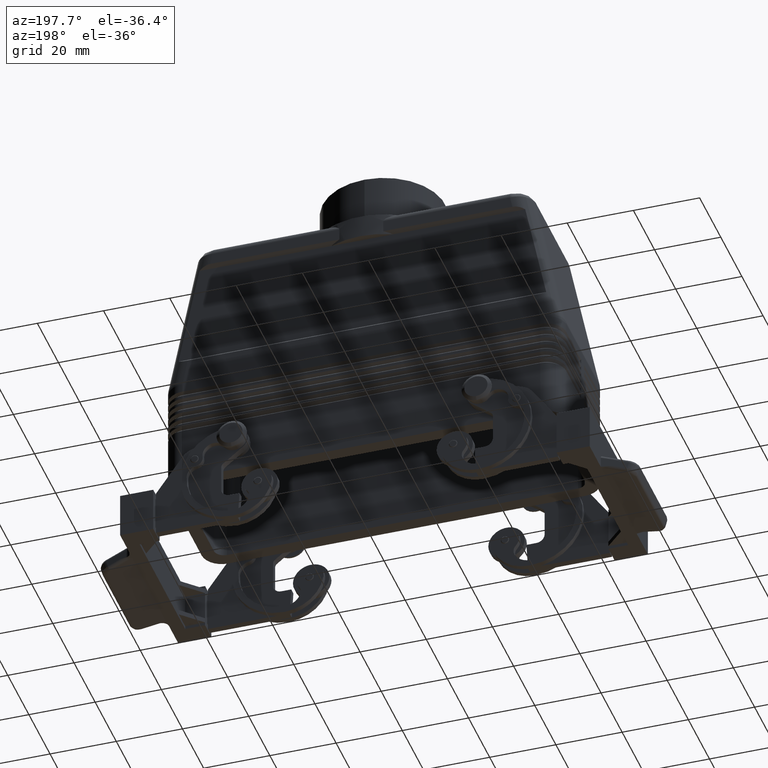
[diagram: clean part render]
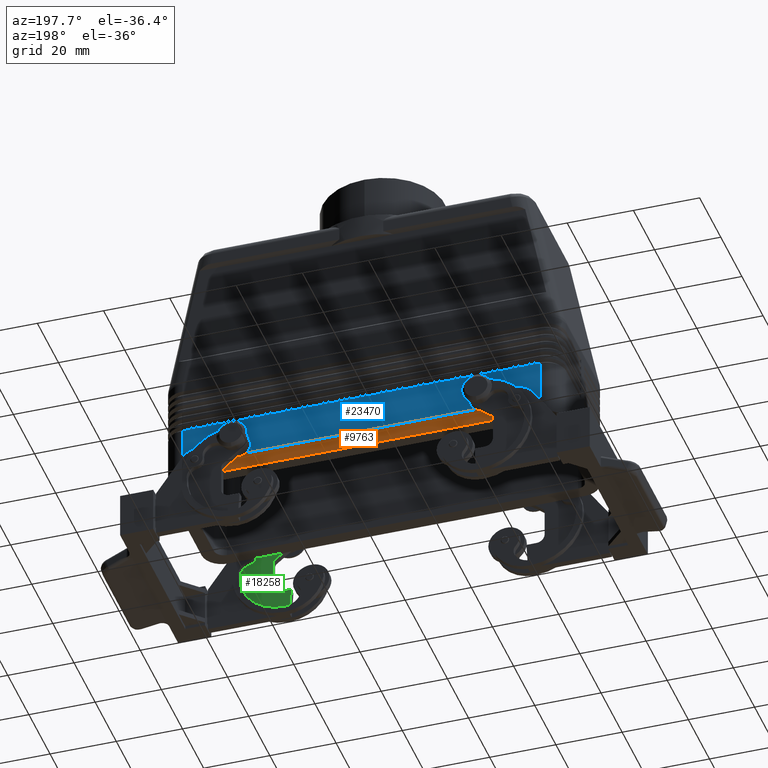
[diagram: same view with three faces highlighted in distinct colors, each labeled with its STEP entity id]
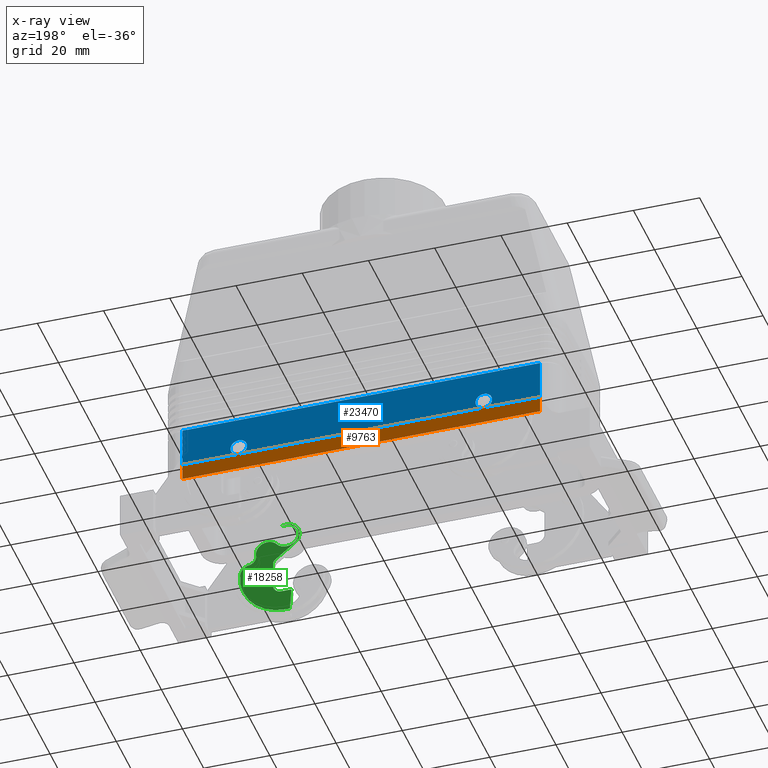
[diagram: x-ray of the same camera — body ghosted, the three highlighted faces saturated]
A machine part, auxiliary view with three faces highlighted in distinct colors.
The next image is the same camera in x-ray (body ghosted, the three faces saturated) — at least one of them is partly hidden behind the body in this view.
Their STEP definitions:

[orange] entity #9763 — the highlighted planar face has unit normal (0, 1, 0).
#5340=CARTESIAN_POINT('',(37.0,21.501000000000012,5.0));
#5341=VERTEX_POINT('',#5340);
#5464=CARTESIAN_POINT('',(-37.0,21.501000000000012,5.0));
#5465=VERTEX_POINT('',#5464);
#9177=CARTESIAN_POINT('',(54.000999999999983,21.501000000000012,5.0));
#9178=VERTEX_POINT('',#9177);
#9186=CARTESIAN_POINT('',(37.0,21.501000000000012,5.0));
#9187=DIRECTION('',(1.0,0.0,0.0));
#9188=VECTOR('',#9187,17.000999999999983);
#9189=LINE('',#9186,#9188);
#9190=EDGE_CURVE('',#5341,#9178,#9189,.T.);
#9311=CARTESIAN_POINT('',(-54.000999999999983,21.501000000000012,5.0));
#9312=VERTEX_POINT('',#9311);
#9313=CARTESIAN_POINT('',(-54.000999999999983,21.501000000000012,5.0));
#9314=DIRECTION('',(1.0,0.0,0.0));
#9315=VECTOR('',#9314,17.000999999999983);
#9316=LINE('',#9313,#9315);
#9317=EDGE_CURVE('',#9312,#5465,#9316,.T.);
#9377=CARTESIAN_POINT('',(-37.0,21.501000000000012,5.0));
#9378=DIRECTION('',(1.0,0.0,0.0));
#9379=VECTOR('',#9378,74.0);
#9380=LINE('',#9377,#9379);
#9381=EDGE_CURVE('',#5465,#5341,#9380,.T.);
#9719=CARTESIAN_POINT('',(-54.000999999999983,21.501000000000012,0.0));
#9720=VERTEX_POINT('',#9719);
#9721=CARTESIAN_POINT('',(-54.000999999999983,21.501000000000012,0.0));
#9722=DIRECTION('',(0.0,0.0,1.0));
#9723=VECTOR('',#9722,5.0);
#9724=LINE('',#9721,#9723);
#9725=EDGE_CURVE('',#9720,#9312,#9724,.T.);
#9738=CARTESIAN_POINT('',(-54.000999999999983,21.501000000000012,0.0));
#9739=DIRECTION('',(0.0,1.0,0.0));
#9740=DIRECTION('',(0.0,0.0,1.0));
#9741=AXIS2_PLACEMENT_3D('',#9738,#9739,#9740);
#9742=PLANE('',#9741);
#9743=ORIENTED_EDGE('',*,*,#9317,.T.);
#9744=ORIENTED_EDGE('',*,*,#9381,.T.);
#9745=ORIENTED_EDGE('',*,*,#9190,.T.);
#9746=CARTESIAN_POINT('',(54.000999999999983,21.501000000000012,0.0));
#9747=VERTEX_POINT('',#9746);
#9748=CARTESIAN_POINT('',(54.000999999999983,21.501000000000012,0.0));
#9749=DIRECTION('',(0.0,0.0,1.0));
#9750=VECTOR('',#9749,5.0);
#9751=LINE('',#9748,#9750);
#9752=EDGE_CURVE('',#9747,#9178,#9751,.T.);
#9753=ORIENTED_EDGE('',*,*,#9752,.F.);
#9754=CARTESIAN_POINT('',(54.000999999999983,21.501000000000012,0.0));
#9755=DIRECTION('',(-1.0,0.0,0.0));
#9756=VECTOR('',#9755,108.001999999999970);
#9757=LINE('',#9754,#9756);
#9758=EDGE_CURVE('',#9747,#9720,#9757,.T.);
#9759=ORIENTED_EDGE('',*,*,#9758,.T.);
#9760=ORIENTED_EDGE('',*,*,#9725,.T.);
#9761=EDGE_LOOP('',(#9743,#9744,#9745,#9753,#9759,#9760));
#9762=FACE_OUTER_BOUND('',#9761,.T.);
#9763=ADVANCED_FACE('',(#9762),#9742,.T.);

[blue] entity #23470 — the highlighted planar face has unit normal (0, 1, 0).
#3510=CARTESIAN_POINT('',(54.0,21.500000000000000,5.0));
#3511=VERTEX_POINT('',#3510);
#3519=CARTESIAN_POINT('',(54.0,21.500000000000000,17.250000000000011));
#3520=VERTEX_POINT('',#3519);
#3521=CARTESIAN_POINT('',(54.0,21.500000000000000,5.0));
#3522=DIRECTION('',(0.0,0.0,1.0));
#3523=VECTOR('',#3522,12.250000000000011);
#3524=LINE('',#3521,#3523);
#3525=EDGE_CURVE('',#3511,#3520,#3524,.T.);
#3552=CARTESIAN_POINT('',(-54.0,21.500000000000000,17.250000000000011));
#3553=VERTEX_POINT('',#3552);
#3561=CARTESIAN_POINT('',(-54.0,21.500000000000000,5.0));
#3562=VERTEX_POINT('',#3561);
#3563=CARTESIAN_POINT('',(-54.0,21.500000000000000,17.250000000000011));
#3564=DIRECTION('',(0.0,0.0,-1.0));
#3565=VECTOR('',#3564,12.250000000000011);
#3566=LINE('',#3563,#3565);
#3567=EDGE_CURVE('',#3553,#3562,#3566,.T.);
#5321=CARTESIAN_POINT('',(37.0,21.500000000000014,9.999999999999996));
#5322=VERTEX_POINT('',#5321);
#5331=CARTESIAN_POINT('',(37.0,21.500000000000018,5.0));
#5332=VERTEX_POINT('',#5331);
#5333=CARTESIAN_POINT('',(37.0,21.500000000000018,7.499999999999998));
#5334=DIRECTION('',(0.0,-1.0,0.0));
#5335=DIRECTION('',(0.0,0.0,1.0));
#5336=AXIS2_PLACEMENT_3D('',#5333,#5334,#5335);
#5337=CIRCLE('',#5336,2.499999999999999);
#5338=EDGE_CURVE('',#5332,#5322,#5337,.T.);
#5445=CARTESIAN_POINT('',(-37.0,21.500000000000014,9.999999999999996));
#5446=VERTEX_POINT('',#5445);
#5455=CARTESIAN_POINT('',(-37.0,21.500000000000018,5.0));
#5456=VERTEX_POINT('',#5455);
#5457=CARTESIAN_POINT('',(-37.0,21.500000000000018,7.499999999999998));
#5458=DIRECTION('',(0.0,-1.0,0.0));
#5459=DIRECTION('',(0.0,0.0,1.0));
#5460=AXIS2_PLACEMENT_3D('',#5457,#5458,#5459);
#5461=CIRCLE('',#5460,2.499999999999999);
#5462=EDGE_CURVE('',#5456,#5446,#5461,.T.);
#9193=CARTESIAN_POINT('',(54.0,21.500000000000000,5.0));
#9194=DIRECTION('',(-1.0,0.0,0.0));
#9195=VECTOR('',#9194,17.0);
#9196=LINE('',#9193,#9195);
#9197=EDGE_CURVE('',#3511,#5332,#9196,.T.);
#9304=CARTESIAN_POINT('',(-37.0,21.500000000000018,5.0));
#9305=DIRECTION('',(-1.0,0.0,0.0));
#9306=VECTOR('',#9305,17.0);
#9307=LINE('',#9304,#9306);
#9308=EDGE_CURVE('',#5456,#3562,#9307,.T.);
#9365=CARTESIAN_POINT('',(37.0,21.500000000000018,5.0));
#9366=DIRECTION('',(-1.0,0.0,0.0));
#9367=VECTOR('',#9366,74.0);
#9368=LINE('',#9365,#9367);
#9369=EDGE_CURVE('',#5332,#5456,#9368,.T.);
#20161=CARTESIAN_POINT('',(-37.0,21.500000000000018,7.499999999999998));
#20162=DIRECTION('',(0.0,-1.0,0.0));
#20163=DIRECTION('',(0.0,0.0,1.0));
#20164=AXIS2_PLACEMENT_3D('',#20161,#20162,#20163);
#20165=CIRCLE('',#20164,2.499999999999999);
#20166=EDGE_CURVE('',#5446,#5456,#20165,.T.);
#20274=CARTESIAN_POINT('',(37.0,21.500000000000018,7.499999999999998));
#20275=DIRECTION('',(0.0,-1.0,0.0));
#20276=DIRECTION('',(0.0,0.0,1.0));
#20277=AXIS2_PLACEMENT_3D('',#20274,#20275,#20276);
#20278=CIRCLE('',#20277,2.499999999999999);
#20279=EDGE_CURVE('',#5322,#5332,#20278,.T.);
#23377=CARTESIAN_POINT('',(54.0,21.500000000000000,17.250000000000011));
#23378=DIRECTION('',(-1.0,0.0,0.0));
#23379=VECTOR('',#23378,108.0);
#23380=LINE('',#23377,#23379);
#23381=EDGE_CURVE('',#3520,#3553,#23380,.T.);
#23453=CARTESIAN_POINT('',(1.110223E-015,21.500000000000000,38.586977923887630));
#23454=DIRECTION('',(0.0,1.0,0.0));
#23455=DIRECTION('',(0.0,0.0,1.0));
#23456=AXIS2_PLACEMENT_3D('',#23453,#23454,#23455);
#23457=PLANE('',#23456);
#23458=ORIENTED_EDGE('',*,*,#9308,.T.);
#23459=ORIENTED_EDGE('',*,*,#3567,.F.);
#23460=ORIENTED_EDGE('',*,*,#23381,.F.);
#23461=ORIENTED_EDGE('',*,*,#3525,.F.);
#23462=ORIENTED_EDGE('',*,*,#9197,.T.);
#23463=ORIENTED_EDGE('',*,*,#5338,.T.);
#23464=ORIENTED_EDGE('',*,*,#20279,.T.);
#23465=ORIENTED_EDGE('',*,*,#9369,.T.);
#23466=ORIENTED_EDGE('',*,*,#5462,.T.);
#23467=ORIENTED_EDGE('',*,*,#20166,.T.);
#23468=EDGE_LOOP('',(#23458,#23459,#23460,#23461,#23462,#23463,#23464,#23465,#23466,#23467));
#23469=FACE_OUTER_BOUND('',#23468,.T.);
#23470=ADVANCED_FACE('',(#23469),#23457,.T.);

[green] entity #18258 — the highlighted planar face has unit normal (0, 1, 0).
#6429=CARTESIAN_POINT('',(34.059788706663262,-23.499999999999996,9.827586206896557));
#6430=VERTEX_POINT('',#6429);
#6446=CARTESIAN_POINT('',(39.940211293336738,-23.499999999999996,5.172413793103448));
#6447=VERTEX_POINT('',#6446);
#6454=CARTESIAN_POINT('',(37.0,-23.499999999999996,7.500000000000000));
#6455=DIRECTION('',(0.0,1.0,0.0));
#6456=DIRECTION('',(-0.784056344889798,0.0,0.620689655172414));
#6457=AXIS2_PLACEMENT_3D('',#6454,#6455,#6456);
#6458=CIRCLE('',#6457,3.750000000000000);
#6459=EDGE_CURVE('',#6447,#6430,#6458,.T.);
#17852=CARTESIAN_POINT('',(34.515254559659056,-23.500000000000007,4.365348488794185));
#17853=VERTEX_POINT('',#17852);
#17854=CARTESIAN_POINT('',(40.431779540127842,-23.500000000000007,-0.324505683297822));
#17855=VERTEX_POINT('',#17854);
#17856=CARTESIAN_POINT('',(34.515254559659056,-23.500000000000007,4.365348488794185));
#17857=DIRECTION('',(0.783662877801454,0.0,-0.621186360085236));
#17858=VECTOR('',#17857,7.549834435270747);
#17859=LINE('',#17856,#17858);
#17860=EDGE_CURVE('',#17853,#17855,#17859,.T.);
#17883=CARTESIAN_POINT('',(41.0,-23.500000000000007,-1.500000000000002));
#17884=VERTEX_POINT('',#17883);
#17885=CARTESIAN_POINT('',(39.499999999999993,-23.499999999999996,-1.500000000000001));
#17886=DIRECTION('',(0.0,1.000000000000000,0.0));
#17887=DIRECTION('',(0.621186360085235,0.0,0.783662877801454));
#17888=AXIS2_PLACEMENT_3D('',#17885,#17886,#17887);
#17889=CIRCLE('',#17888,1.500000000000000);
#17890=EDGE_CURVE('',#17855,#17884,#17889,.T.);
#17908=CARTESIAN_POINT('',(40.999999999999979,-23.500000000000007,-9.500000000000004));
#17909=VERTEX_POINT('',#17908);
#17910=CARTESIAN_POINT('',(41.0,-23.500000000000007,-1.500000000000002));
#17911=DIRECTION('',(0.0,0.0,-1.0));
#17912=VECTOR('',#17911,8.000000000000002);
#17913=LINE('',#17910,#17912);
#17914=EDGE_CURVE('',#17884,#17909,#17913,.T.);
#17932=CARTESIAN_POINT('',(38.500000000000000,-23.500000000000007,-11.999999999999989));
#17933=VERTEX_POINT('',#17932);
#17934=CARTESIAN_POINT('',(38.500000000000000,-23.499999999999996,-9.500000000000000));
#17935=DIRECTION('',(0.0,1.0,0.0));
#17936=DIRECTION('',(1.0,0.0,0.0));
#17937=AXIS2_PLACEMENT_3D('',#17934,#17935,#17936);
#17938=CIRCLE('',#17937,2.499999999999995);
#17939=EDGE_CURVE('',#17909,#17933,#17938,.T.);
#17957=CARTESIAN_POINT('',(35.500000000000000,-23.500000000000007,-11.999999999999989));
#17958=VERTEX_POINT('',#17957);
#17959=CARTESIAN_POINT('',(38.500000000000000,-23.500000000000007,-11.999999999999989));
#17960=DIRECTION('',(-1.0,0.0,0.0));
#17961=VECTOR('',#17960,3.0);
#17962=LINE('',#17959,#17961);
#17963=EDGE_CURVE('',#17933,#17958,#17962,.T.);
#17981=CARTESIAN_POINT('',(35.889715800714242,-23.499999999999996,-18.625168612142190));
#17982=VERTEX_POINT('',#17981);
#17983=CARTESIAN_POINT('',(35.500000000000000,-23.500000000000007,-11.999999999999989));
#17984=DIRECTION('',(0.058722021951470,1.605959E-015,-0.998274373174996));
#17985=VECTOR('',#17984,6.636620943269290);
#17986=LINE('',#17983,#17985);
#17987=EDGE_CURVE('',#17958,#17982,#17986,.T.);
#18131=CARTESIAN_POINT('',(38.603338161158796,-23.499999999999996,11.169463142360422));
#18132=VERTEX_POINT('',#18131);
#18139=CARTESIAN_POINT('',(38.426941432981735,-23.500000000000007,11.236821931379662));
#18140=VERTEX_POINT('',#18139);
#18141=CARTESIAN_POINT('',(38.603338161158796,-23.499999999999996,11.169463142360422));
#18142=DIRECTION('',(-0.934205482844913,-5.644602E-014,0.356735358245442));
#18143=VECTOR('',#18142,0.188820052350671);
#18144=LINE('',#18141,#18143);
#18145=EDGE_CURVE('',#18132,#18140,#18144,.T.);
#18170=CARTESIAN_POINT('',(37.0,-23.499999999999996,7.500000000000000));
#18171=DIRECTION('',(0.0,-1.0,0.0));
#18172=DIRECTION('',(0.621186360085235,0.0,0.783662877801454));
#18173=AXIS2_PLACEMENT_3D('',#18170,#18171,#18172);
#18174=CIRCLE('',#18173,4.0);
#18175=EDGE_CURVE('',#18140,#17853,#18174,.T.);
#18183=CARTESIAN_POINT('',(49.986053035139129,-23.500000000000007,-7.517596516988995));
#18184=DIRECTION('',(0.0,1.0,0.0));
#18185=DIRECTION('',(0.0,0.0,1.0));
#18186=AXIS2_PLACEMENT_3D('',#18183,#18184,#18185);
#18187=PLANE('',#18186);
#18188=CARTESIAN_POINT('',(37.0,-23.499999999999996,-18.750000000000004));
#18189=VERTEX_POINT('',#18188);
#18190=CARTESIAN_POINT('',(37.0,-23.499999999999996,-13.750000000000002));
#18191=DIRECTION('',(0.0,-1.0,0.0));
#18192=DIRECTION('',(0.0,0.0,-1.0));
#18193=AXIS2_PLACEMENT_3D('',#18190,#18191,#18192);
#18194=CIRCLE('',#18193,5.0);
#18195=EDGE_CURVE('',#17982,#18189,#18194,.T.);
#18196=ORIENTED_EDGE('',*,*,#18195,.F.);
#18197=ORIENTED_EDGE('',*,*,#17987,.F.);
#18198=ORIENTED_EDGE('',*,*,#17963,.F.);
#18199=ORIENTED_EDGE('',*,*,#17939,.F.);
#18200=ORIENTED_EDGE('',*,*,#17914,.F.);
#18201=ORIENTED_EDGE('',*,*,#17890,.F.);
#18202=ORIENTED_EDGE('',*,*,#17860,.F.);
#18203=ORIENTED_EDGE('',*,*,#18175,.F.);
#18204=ORIENTED_EDGE('',*,*,#18145,.F.);
#18205=CARTESIAN_POINT('',(37.0,-23.499999999999996,11.250000000000000));
#18206=VERTEX_POINT('',#18205);
#18207=CARTESIAN_POINT('',(37.0,-23.499999999999996,-4.750000000000001));
#18208=DIRECTION('',(0.0,1.0,0.0));
#18209=DIRECTION('',(0.0,0.0,-1.0));
#18210=AXIS2_PLACEMENT_3D('',#18207,#18208,#18209);
#18211=CIRCLE('',#18210,16.0);
#18212=EDGE_CURVE('',#18206,#18132,#18211,.T.);
#18213=ORIENTED_EDGE('',*,*,#18212,.F.);
#18214=CARTESIAN_POINT('',(37.0,-23.499999999999996,7.500000000000000));
#18215=DIRECTION('',(0.0,1.0,0.0));
#18216=DIRECTION('',(-0.784056344889798,0.0,0.620689655172414));
#18217=AXIS2_PLACEMENT_3D('',#18214,#18215,#18216);
#18218=CIRCLE('',#18217,3.750000000000000);
#18219=EDGE_CURVE('',#6430,#18206,#18218,.T.);
#18220=ORIENTED_EDGE('',*,*,#18219,.F.);
#18221=ORIENTED_EDGE('',*,*,#6459,.F.);
#18222=CARTESIAN_POINT('',(46.135455040592475,-23.499999999999996,2.416666666666667));
#18223=VERTEX_POINT('',#18222);
#18224=CARTESIAN_POINT('',(42.684408500451035,-23.499999999999996,2.999999999999999));
#18225=DIRECTION('',(0.0,-1.0,0.0));
#18226=DIRECTION('',(-0.784056344889799,0.0,0.620689655172413));
#18227=AXIS2_PLACEMENT_3D('',#18224,#18225,#18226);
#18228=CIRCLE('',#18227,3.500000000000000);
#18229=EDGE_CURVE('',#18223,#6447,#18228,.T.);
#18230=ORIENTED_EDGE('',*,*,#18229,.F.);
#18231=CARTESIAN_POINT('',(48.127305116649893,-23.499999999999996,-0.454811131342239));
#18232=VERTEX_POINT('',#18231);
#18233=CARTESIAN_POINT('',(48.600488283550654,-23.499999999999996,2.0));
#18234=DIRECTION('',(0.0,1.0,0.0));
#18235=DIRECTION('',(0.189273266760303,0.0,0.981924452536896));
#18236=AXIS2_PLACEMENT_3D('',#18233,#18234,#18235);
#18237=CIRCLE('',#18236,2.500000000000000);
#18238=EDGE_CURVE('',#18232,#18223,#18237,.T.);
#18239=ORIENTED_EDGE('',*,*,#18238,.F.);
#18240=CARTESIAN_POINT('',(50.953131577318430,-23.499999999999996,-3.605395620295163));
#18241=VERTEX_POINT('',#18240);
#18242=CARTESIAN_POINT('',(47.464848682988801,-23.499999999999996,-3.891546715221374));
#18243=DIRECTION('',(0.0,-1.0,0.0));
#18244=DIRECTION('',(0.189273266760312,0.0,0.981924452536894));
#18245=AXIS2_PLACEMENT_3D('',#18242,#18243,#18244);
#18246=CIRCLE('',#18245,3.500000000000000);
#18247=EDGE_CURVE('',#18241,#18232,#18246,.T.);
#18248=ORIENTED_EDGE('',*,*,#18247,.F.);
#18249=CARTESIAN_POINT('',(37.0,-23.499999999999996,-4.750000000000001));
#18250=DIRECTION('',(0.0,-1.0,0.0));
#18251=DIRECTION('',(0.996652255522745,0.0,0.081757455693203));
#18252=AXIS2_PLACEMENT_3D('',#18249,#18250,#18251);
#18253=CIRCLE('',#18252,14.000000000000002);
#18254=EDGE_CURVE('',#18189,#18241,#18253,.T.);
#18255=ORIENTED_EDGE('',*,*,#18254,.F.);
#18256=EDGE_LOOP('',(#18196,#18197,#18198,#18199,#18200,#18201,#18202,#18203,#18204,#18213,#18220,#18221,#18230,#18239,#18248,#18255));
#18257=FACE_OUTER_BOUND('',#18256,.T.);
#18258=ADVANCED_FACE('',(#18257),#18187,.T.);